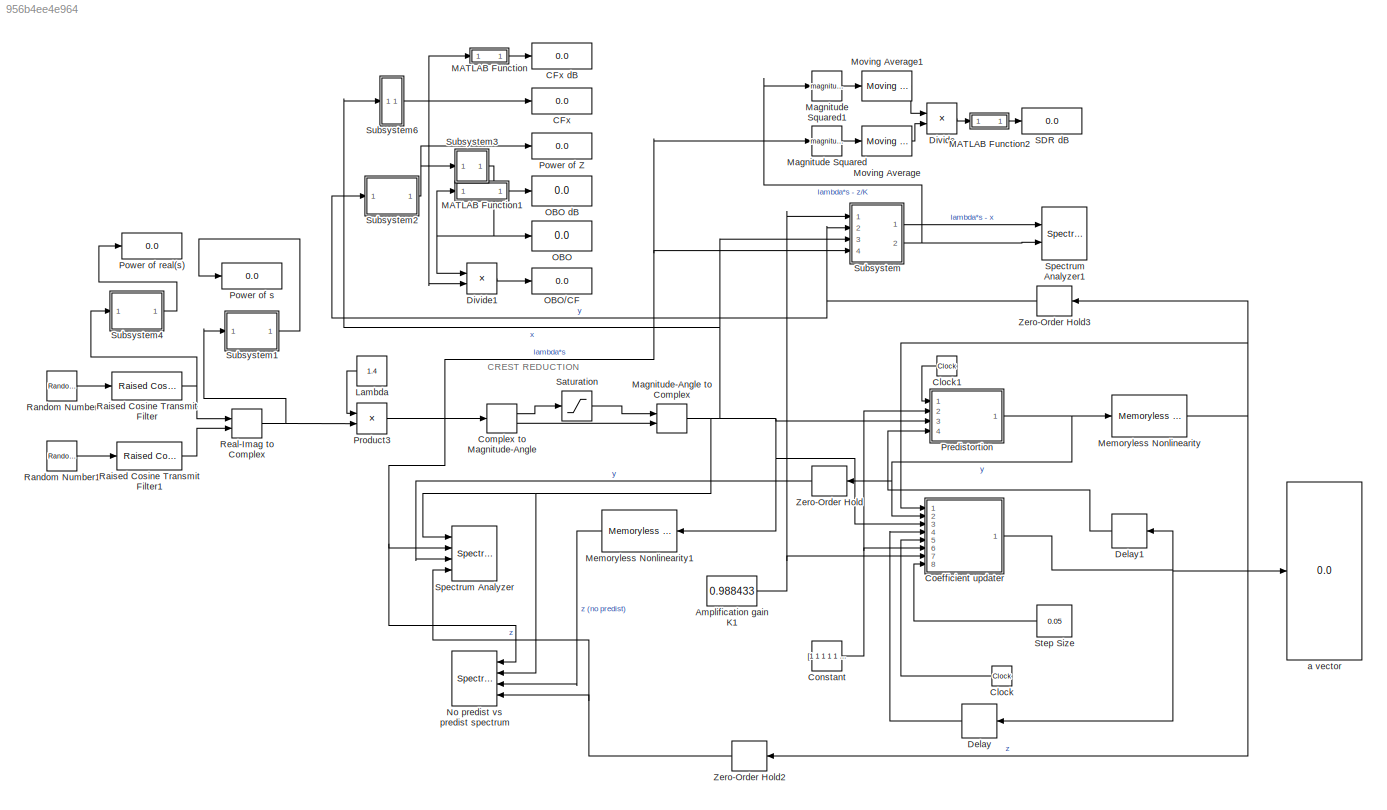
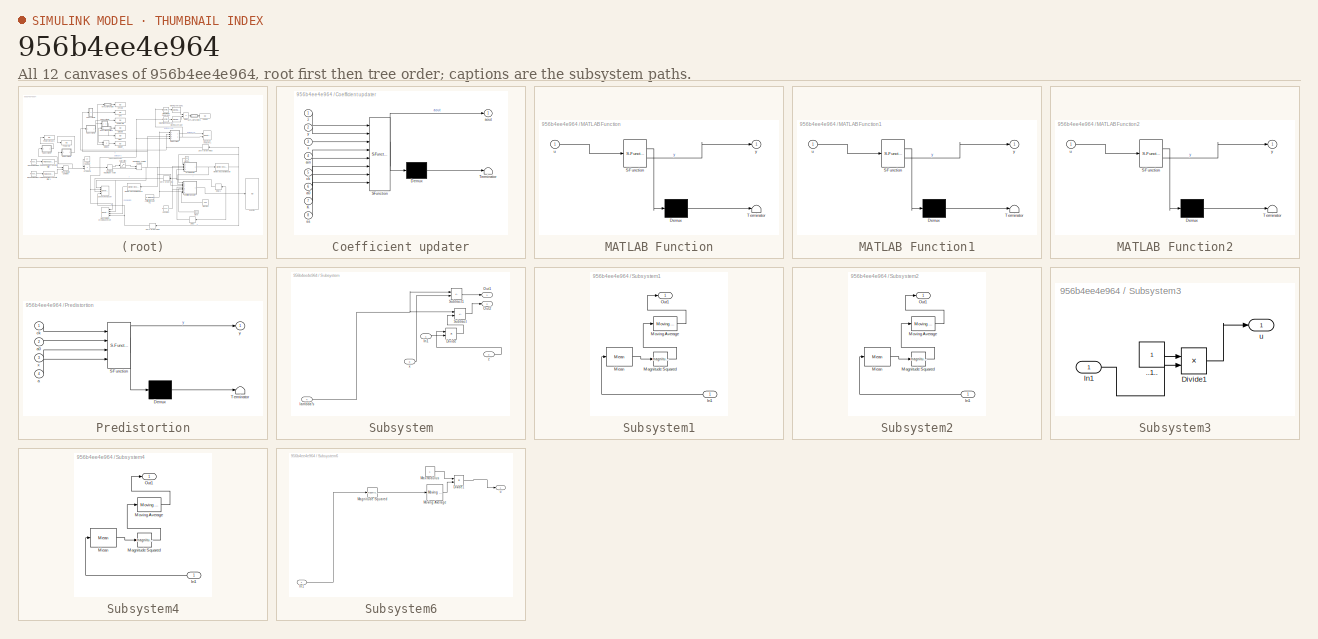
[diagram: thumbnail index - all 12 canvases of the model, root first then tree order]
MODEL slx_956b4ee4e964
KIND model
CONFIG AbsTol = auto
CONFIG EnableMultiTasking = off
CONFIG FixedStep = auto
CONFIG MaxStep = auto
CONFIG MinStep = auto
CONFIG RelTol = 1e-3
CONFIG SampleTimeConstraint = Unconstrained
CONFIG SolverName = VariableStepAuto
CONFIG StartTime = 0.0
CONFIG StopTime = 0.01
BLOCK [Display]  CFx
  Decimation = 1
  Ports = [1]
BLOCK [Display]  CFx dB
  Decimation = 1
  Ports = [1]
BLOCK [Display]  OBO
  Decimation = 1
  Ports = [1]
BLOCK [Display]  OBO dB
  Decimation = 1
  Ports = [1]
BLOCK [Display]  OBO//CF
  Decimation = 1
  Ports = [1]
BLOCK [Display]  Power of Z
  Decimation = 1
  Ports = [1]
BLOCK [Display]  Power of real(s)
  Decimation = 1
  Ports = [1]
BLOCK [Display]  Power of s
  Decimation = 1
  Ports = [1]
BLOCK [Constant] Amplification gain K1
  Value = 0.988433
BLOCK [Clock] Clock
BLOCK [Clock] Clock1
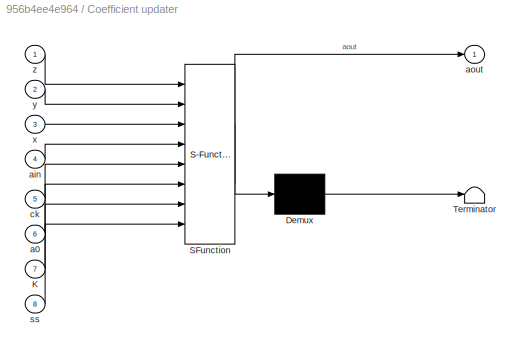
BLOCK [SubSystem] Coefficient updater
  ErrorFcn = Stateflow.Translate.translate
  PermitHierarchicalResolution = ExplicitOnly
  Ports = [8, 1]
  RequestExecContextInheritance = off
  SFBlockType = MATLAB Function
  TreatAsAtomicUnit = on
BLOCK [Demux] Coefficient updater/ Demux 
  Outputs = 1
  Ports = [1, 1]
BLOCK [S-Function] Coefficient updater/ SFunction 
  EnableBusSupport = on
  FunctionName = sf_sfun
  PortCounts = [8 2]
  Ports = [8, 2]
  SFcnIsStateOwnerBlock = off
  SFunctionDeploymentMode = off
  Tag = Stateflow S-Function 3
BLOCK [Terminator] Coefficient updater/ Terminator 
BLOCK [Inport] Coefficient updater/K
  Port = 7
BLOCK [Inport] Coefficient updater/a0
  Port = 6
BLOCK [Inport] Coefficient updater/ain
  Port = 4
BLOCK [Outport] Coefficient updater/aout
BLOCK [Inport] Coefficient updater/ck
  Port = 5
BLOCK [Inport] Coefficient updater/ss
  Port = 8
BLOCK [Inport] Coefficient updater/x
  Port = 3
BLOCK [Inport] Coefficient updater/y
  Port = 2
BLOCK [Inport] Coefficient updater/z
BLOCK [ComplexToMagnitudeAngle] Complex to Magnitude-Angle
  Ports = [1, 2]
BLOCK [Constant] Constant
  Value = [1 1 1 1 1 1 1 1 1 1]
BLOCK [Delay] Delay
  DelayLength = 1
  InitialCondition = 0
  InputPortMap = u0
  Ports = [1, 1]
BLOCK [Delay] Delay1
  DelayLength = 1
  InitialCondition = 0
  InputPortMap = u0
  Ports = [1, 1]
BLOCK [Product] Divide
  Inputs = /*
  Ports = [2, 1]
BLOCK [Product] Divide1
  Inputs = */
  NameLocation = top
  Ports = [2, 1]
BLOCK [Constant] Lambda
  Value = 1.4
BLOCK [SubSystem] MATLAB Function
  ErrorFcn = Stateflow.Translate.translate
  PermitHierarchicalResolution = ExplicitOnly
  Ports = [1, 1]
  RequestExecContextInheritance = off
  SFBlockType = MATLAB Function
  TreatAsAtomicUnit = on
BLOCK [Demux] MATLAB Function/ Demux 
  Outputs = 1
  Ports = [1, 1]
BLOCK [S-Function] MATLAB Function/ SFunction 
  EnableBusSupport = on
  FunctionName = sf_sfun
  PortCounts = [1 2]
  Ports = [1, 2]
  SFcnIsStateOwnerBlock = off
  SFunctionDeploymentMode = off
  Tag = Stateflow S-Function 5
BLOCK [Terminator] MATLAB Function/ Terminator 
BLOCK [Inport] MATLAB Function/u
BLOCK [Outport] MATLAB Function/y
BLOCK [SubSystem] MATLAB Function1
  ErrorFcn = Stateflow.Translate.translate
  PermitHierarchicalResolution = ExplicitOnly
  Ports = [1, 1]
  RequestExecContextInheritance = off
  SFBlockType = MATLAB Function
  TreatAsAtomicUnit = on
BLOCK [Demux] MATLAB Function1/ Demux 
  Outputs = 1
  Ports = [1, 1]
BLOCK [S-Function] MATLAB Function1/ SFunction 
  EnableBusSupport = on
  FunctionName = sf_sfun
  PortCounts = [1 2]
  Ports = [1, 2]
  SFcnIsStateOwnerBlock = off
  SFunctionDeploymentMode = off
  Tag = Stateflow S-Function 6
BLOCK [Terminator] MATLAB Function1/ Terminator 
BLOCK [Inport] MATLAB Function1/u
BLOCK [Outport] MATLAB Function1/y
BLOCK [SubSystem] MATLAB Function2
  ErrorFcn = Stateflow.Translate.translate
  PermitHierarchicalResolution = ExplicitOnly
  Ports = [1, 1]
  RequestExecContextInheritance = off
  SFBlockType = MATLAB Function
  TreatAsAtomicUnit = on
BLOCK [Demux] MATLAB Function2/ Demux 
  Outputs = 1
  Ports = [1, 1]
BLOCK [S-Function] MATLAB Function2/ SFunction 
  EnableBusSupport = on
  FunctionName = sf_sfun
  PortCounts = [1 2]
  Ports = [1, 2]
  SFcnIsStateOwnerBlock = off
  SFunctionDeploymentMode = off
  Tag = Stateflow S-Function 2
BLOCK [Terminator] MATLAB Function2/ Terminator 
BLOCK [Inport] MATLAB Function2/u
BLOCK [Outport] MATLAB Function2/y
BLOCK [Math] Magnitude Squared
  Operator = magnitude^2
  Ports = [1, 1]
BLOCK [Math] Magnitude Squared1
  Operator = magnitude^2
  Ports = [1, 1]
BLOCK [MagnitudeAngleToComplex] Magnitude-Angle to Complex
  Ports = [2, 1]
BLOCK [Reference] Memoryless Nonlinearity  REF=commrflib2/Memoryless
Nonlinearity
  Ports = [1, 1]
  SourceBlock = commrflib2/Memoryless\nNonlinearity
  SourceProductBaseCode = CM
  SourceType = Memoryless Nonlinearity
BLOCK [Reference] Memoryless Nonlinearity1  REF=commrflib2/Memoryless
Nonlinearity
  Ports = [1, 1]
  SourceBlock = commrflib2/Memoryless\nNonlinearity
  SourceProductBaseCode = CM
  SourceType = Memoryless Nonlinearity
BLOCK [Reference] Moving Average  REF=dspstat3/Moving
Average
  Ports = [1, 1]
  SourceBlock = dspstat3/Moving\nAverage
  SourceProductBaseCode = DS
  SourceType = dsp.simulink.MovingAverage
BLOCK [Reference] Moving Average1  REF=dspstat3/Moving
Average
  Ports = [1, 1]
  SourceBlock = dspstat3/Moving\nAverage
  SourceProductBaseCode = DS
  SourceType = dsp.simulink.MovingAverage
BLOCK [SpectrumAnalyzer] No predist vs predist spectrum
  Commented = on
  NumInputPorts = 4
  Ports = [4]
  ScopeSpecificationString = spbscopes.SpectrumAnalyzerBlockCfg('CurrentConfiguration', extmgr.ConfigurationSet(extmgr.Configuration('Core','General UI',true),extmgr.Configuration('Core','Source UI',true),extmgr.Configuration('Sources','WiredSimulink',true),extmgr.Configuration('Visuals','Spectrum',true,'AxesProperties',struct('Color',{[0 0 0],[0 0 0]},'XColor',{[0.686274509803922 0.686274509803922 0.686274509803922],[0.68627...<+2151ch>
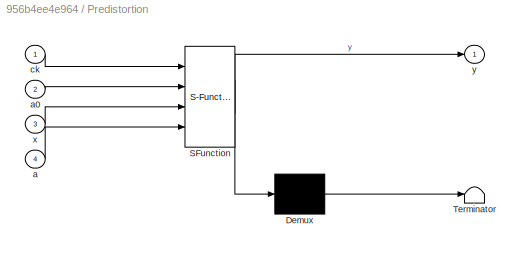
BLOCK [SubSystem] Predistortion
  ErrorFcn = Stateflow.Translate.translate
  PermitHierarchicalResolution = ExplicitOnly
  Ports = [4, 1]
  RequestExecContextInheritance = off
  SFBlockType = MATLAB Function
  TreatAsAtomicUnit = on
BLOCK [Demux] Predistortion/ Demux 
  Outputs = 1
  Ports = [1, 1]
BLOCK [S-Function] Predistortion/ SFunction 
  EnableBusSupport = on
  FunctionName = sf_sfun
  PortCounts = [4 2]
  Ports = [4, 2]
  SFcnIsStateOwnerBlock = off
  SFunctionDeploymentMode = off
  Tag = Stateflow S-Function 1
BLOCK [Terminator] Predistortion/ Terminator 
BLOCK [Inport] Predistortion/a
  Port = 4
BLOCK [Inport] Predistortion/a0
  Port = 2
BLOCK [Inport] Predistortion/ck
BLOCK [Inport] Predistortion/x
  Port = 3
BLOCK [Outport] Predistortion/y
BLOCK [Product] Product3
  Ports = [2, 1]
BLOCK [Reference] Raised Cosine Transmit Filter  REF=commfilt2/Raised Cosine
Transmit Filter
  Ports = [1, 1]
  SourceBlock = commfilt2/Raised Cosine\nTransmit Filter
  SourceProductBaseCode = CM
  SourceType = Raised Cosine Transmit Filter
BLOCK [Reference] Raised Cosine Transmit Filter1  REF=commfilt2/Raised Cosine
Transmit Filter
  Ports = [1, 1]
  SourceBlock = commfilt2/Raised Cosine\nTransmit Filter
  SourceProductBaseCode = CM
  SourceType = Raised Cosine Transmit Filter
BLOCK [RandomNumber] Random Number
  SampleTime = 0.0000002
  Seed = 3
BLOCK [RandomNumber] Random Number1
  SampleTime = 0.0000002
  Seed = 4
BLOCK [RealImagToComplex] Real-Imag to Complex
  Ports = [2, 1]
BLOCK [Display] SDR dB
  Decimation = 1
  Ports = [1]
BLOCK [Saturate] Saturation
  LinearizeAsGain = off
  LowerLimit = 0
  UpperLimit = 1
BLOCK [SpectrumAnalyzer] Spectrum Analyzer
  Commented = on
  NumInputPorts = 4
  Ports = [4]
  ScopeSpecificationString = spbscopes.SpectrumAnalyzerBlockCfg('CurrentConfiguration', extmgr.ConfigurationSet(extmgr.Configuration('Core','General UI',true),extmgr.Configuration('Core','Source UI',true),extmgr.Configuration('Sources','WiredSimulink',true),extmgr.Configuration('Visuals','Spectrum',true,'AxesProperties',struct('Color',{[0 0 0],[0 0 0]},'XColor',{[0.686274509803922 0.686274509803922 0.686274509803922],[0.68627...<+2107ch>
BLOCK [SpectrumAnalyzer] Spectrum Analyzer1
  Commented = on
  NumInputPorts = 2
  Ports = [2]
  ScopeSpecificationString = spbscopes.SpectrumAnalyzerBlockCfg('CurrentConfiguration', extmgr.ConfigurationSet(extmgr.Configuration('Core','General UI',true),extmgr.Configuration('Core','Source UI',true),extmgr.Configuration('Sources','WiredSimulink',true),extmgr.Configuration('Visuals','Spectrum',true,'AxesProperties',struct('Color',{[0 0 0],[0 0 0]},'XColor',{[0.686274509803922 0.686274509803922 0.686274509803922],[0.68627...<+1960ch>
BLOCK [Constant] Step Size
  NameLocation = top
  Value = 0.05
BLOCK [SubSystem] Subsystem
  Ports = [4, 2]
  RequestExecContextInheritance = off
BLOCK [Product] Subsystem/Divide
  Inputs = */
  Ports = [2, 1]
BLOCK [Inport] Subsystem/In1
BLOCK [Outport] Subsystem/Out1
BLOCK [Outport] Subsystem/Out2
  Port = 2
BLOCK [Sum] Subsystem/Subtract
  IconShape = rectangular
  Inputs = +-
  Ports = [2, 1]
BLOCK [Sum] Subsystem/Subtract1
  IconShape = rectangular
  Inputs = +-
  Ports = [2, 1]
BLOCK [Inport] Subsystem/lambda*s
  Port = 4
BLOCK [Inport] Subsystem/x
  Port = 3
BLOCK [Inport] Subsystem/z
  Port = 2
BLOCK [SubSystem] Subsystem1
  Ports = [1, 1]
  RequestExecContextInheritance = off
BLOCK [Inport] Subsystem1/In1
BLOCK [Math] Subsystem1/Magnitude Squared
  Operator = magnitude^2
  Ports = [1, 1]
BLOCK [Reference] Subsystem1/Mean  REF=dspstat3/Mean
  Ports = [1, 1]
  SourceBlock = dspstat3/Mean
  SourceProductBaseCode = DS
  SourceType = Mean
  UserDataPersistent = on
BLOCK [Reference] Subsystem1/Moving Average  REF=dspstat3/Moving
Average
  Ports = [1, 1]
  SourceBlock = dspstat3/Moving\nAverage
  SourceProductBaseCode = DS
  SourceType = dsp.simulink.MovingAverage
BLOCK [Outport] Subsystem1/Out1
BLOCK [SubSystem] Subsystem2
  Ports = [1, 1]
  RequestExecContextInheritance = off
BLOCK [Inport] Subsystem2/In1
BLOCK [Math] Subsystem2/Magnitude Squared
  Operator = magnitude^2
  Ports = [1, 1]
BLOCK [Reference] Subsystem2/Mean  REF=dspstat3/Mean
  Ports = [1, 1]
  SourceBlock = dspstat3/Mean
  SourceProductBaseCode = DS
  SourceType = Mean
  UserDataPersistent = on
BLOCK [Reference] Subsystem2/Moving Average  REF=dspstat3/Moving
Average
  Ports = [1, 1]
  SourceBlock = dspstat3/Moving\nAverage
  SourceProductBaseCode = DS
  SourceType = dsp.simulink.MovingAverage
BLOCK [Outport] Subsystem2/Out1
BLOCK [SubSystem] Subsystem3
  Ports = [1, 1]
  RequestExecContextInheritance = off
BLOCK [Constant] Subsystem3/..1..
BLOCK [Product] Subsystem3/Divide1
  Inputs = */
  Ports = [2, 1]
BLOCK [Inport] Subsystem3/In1
BLOCK [Outport] Subsystem3/u
BLOCK [SubSystem] Subsystem4
  Ports = [1, 1]
  RequestExecContextInheritance = off
BLOCK [Inport] Subsystem4/In1
BLOCK [Math] Subsystem4/Magnitude Squared
  Operator = magnitude^2
  Ports = [1, 1]
BLOCK [Reference] Subsystem4/Mean  REF=dspstat3/Mean
  Ports = [1, 1]
  SourceBlock = dspstat3/Mean
  SourceProductBaseCode = DS
  SourceType = Mean
  UserDataPersistent = on
BLOCK [Reference] Subsystem4/Moving Average  REF=dspstat3/Moving
Average
  Ports = [1, 1]
  SourceBlock = dspstat3/Moving\nAverage
  SourceProductBaseCode = DS
  SourceType = dsp.simulink.MovingAverage
BLOCK [Outport] Subsystem4/Out1
BLOCK [SubSystem] Subsystem6
  Ports = [1, 1]
  RequestExecContextInheritance = off
BLOCK [Product] Subsystem6/Divide1
  Inputs = */
  Ports = [2, 1]
BLOCK [Inport] Subsystem6/In1
BLOCK [Math] Subsystem6/Magnitude Squared
  Operator = magnitude^2
  Ports = [1, 1]
BLOCK [Constant] Subsystem6/Max modulus
BLOCK [Reference] Subsystem6/Moving Average  REF=dspstat3/Moving
Average
  Ports = [1, 1]
  SourceBlock = dspstat3/Moving\nAverage
  SourceProductBaseCode = DS
  SourceType = dsp.simulink.MovingAverage
BLOCK [Outport] Subsystem6/u
BLOCK [ZeroOrderHold] Zero-Order Hold
  SampleTime = -1
BLOCK [ZeroOrderHold] Zero-Order Hold2
  SampleTime = -1
BLOCK [ZeroOrderHold] Zero-Order Hold3
  SampleTime = -1
BLOCK [Display] a vector
  Decimation = 1
  Ports = [1]
ANNOTATION (root): CREST REDUCTION
NET Amplification gain K1:1 -> Coefficient updater:7, Subsystem:1
LINE Clock1:1 -> Predistortion:1
LINE Clock:1 -> Coefficient updater:5
NET Coefficient updater:1 -> Delay1:1, Delay:1, a vector:1
LINE Complex to Magnitude-Angle:1 -> Saturation:1
LINE Complex to Magnitude-Angle:2 -> Magnitude-Angle to Complex:2
NET Constant:1 -> Coefficient updater:6, Predistortion:2
LINE Delay1:1 -> Predistortion:4
LINE Delay:1 -> Coefficient updater:4
LINE Divide1:1 ->  OBO//CF:1
LINE Divide:1 -> MATLAB Function2:1
LINE Lambda:1 -> Product3:1
LINE MATLAB Function1:1 ->  OBO dB:1
LINE MATLAB Function2:1 -> SDR dB:1
LINE MATLAB Function:1 ->  CFx dB:1
LINE Magnitude Squared1:1 -> Moving Average1:1
LINE Magnitude Squared:1 -> Moving Average:1
NET Magnitude-Angle to Complex:1 -> Coefficient updater:3, Memoryless Nonlinearity1:1, No predist vs predist spectrum:2, Predistortion:3, Spectrum Analyzer:1, Subsystem6:1, Subsystem:3
LINE Memoryless Nonlinearity1:1 -> No predist vs predist spectrum:3
NET Memoryless Nonlinearity:1 -> Coefficient updater:1, Zero-Order Hold2:1, Zero-Order Hold3:1
LINE Moving Average1:1 -> Divide:1
LINE Moving Average:1 -> Divide:2
NET Predistortion:1 -> Coefficient updater:2, Memoryless Nonlinearity:1, Zero-Order Hold:1
NET Product3:1 -> Complex to Magnitude-Angle:1, Magnitude Squared:1, No predist vs predist spectrum:1, Spectrum Analyzer:2, Subsystem:4
LINE Raised Cosine Transmit Filter1:1 -> Real-Imag to Complex:2
NET Raised Cosine Transmit Filter:1 -> Real-Imag to Complex:1, Subsystem4:1
LINE Random Number1:1 -> Raised Cosine Transmit Filter1:1
LINE Random Number:1 -> Raised Cosine Transmit Filter:1
NET Real-Imag to Complex:1 -> Product3:2, Subsystem1:1
LINE Saturation:1 -> Magnitude-Angle to Complex:1
LINE Step Size:1 -> Coefficient updater:8
LINE Subsystem/Divide:1 -> Subsystem/Subtract:2
LINE Subsystem/In1:1 -> Subsystem/Divide:2
LINE Subsystem/Subtract1:1 -> Subsystem/Out1:1
LINE Subsystem/Subtract:1 -> Subsystem/Out2:1
NET Subsystem/lambda*s:1 -> Subsystem/Subtract1:1, Subsystem/Subtract:1
LINE Subsystem/x:1 -> Subsystem/Subtract1:2
LINE Subsystem/z:1 -> Subsystem/Divide:1
LINE Subsystem1/In1:1 -> Subsystem1/Mean:1
LINE Subsystem1/Magnitude Squared:1 -> Subsystem1/Moving Average:1
LINE Subsystem1/Mean:1 -> Subsystem1/Magnitude Squared:1
LINE Subsystem1/Moving Average:1 -> Subsystem1/Out1:1
LINE Subsystem1:1 ->  Power of s:1
LINE Subsystem2/In1:1 -> Subsystem2/Mean:1
LINE Subsystem2/Magnitude Squared:1 -> Subsystem2/Moving Average:1
LINE Subsystem2/Mean:1 -> Subsystem2/Magnitude Squared:1
LINE Subsystem2/Moving Average:1 -> Subsystem2/Out1:1
NET Subsystem2:1 ->  Power of Z:1, Subsystem3:1
LINE Subsystem3/..1..:1 -> Subsystem3/Divide1:1
LINE Subsystem3/Divide1:1 -> Subsystem3/u:1
LINE Subsystem3/In1:1 -> Subsystem3/Divide1:2
NET Subsystem3:1 ->  OBO:1, Divide1:1, MATLAB Function1:1
LINE Subsystem4/In1:1 -> Subsystem4/Mean:1
LINE Subsystem4/Magnitude Squared:1 -> Subsystem4/Moving Average:1
LINE Subsystem4/Mean:1 -> Subsystem4/Magnitude Squared:1
LINE Subsystem4/Moving Average:1 -> Subsystem4/Out1:1
LINE Subsystem4:1 ->  Power of real(s):1
LINE Subsystem6/Divide1:1 -> Subsystem6/u:1
LINE Subsystem6/In1:1 -> Subsystem6/Magnitude Squared:1
LINE Subsystem6/Magnitude Squared:1 -> Subsystem6/Moving Average:1
LINE Subsystem6/Max modulus:1 -> Subsystem6/Divide1:1
LINE Subsystem6/Moving Average:1 -> Subsystem6/Divide1:2
NET Subsystem6:1 ->  CFx:1, Divide1:2, MATLAB Function:1
LINE Subsystem:1 -> Spectrum Analyzer1:1
NET Subsystem:2 -> Magnitude Squared1:1, Spectrum Analyzer1:2
NET Zero-Order Hold2:1 -> No predist vs predist spectrum:4, Spectrum Analyzer:4
NET Zero-Order Hold3:1 -> Subsystem2:1, Subsystem:2
LINE Zero-Order Hold:1 -> Spectrum Analyzer:3
note: NET lines group one-source signal fan-out (src -> all destinations, sorted); 1:1 wires keep LINE
CHART Predistortion states=1 transitions=1
  STATE_LABEL 'eML_blk_kernel()'
  STATE_LABEL 'SCRIPT:\nfunction y = predistort(ck, a0, x, a)\nif ck == 0\n   aa = a0;\nelse aa = a;\nend\nN = length(aa);\noutpt = x-x;\nfor j = 1:length(x)\n    for k = 1:(N-1)\n        if (abs(x(j))>=1)\n            outpt(j) = x(j)*a(end);\n        end\n        if (k-1)/(N-1) <= abs(x(j)) && k/(N-1) > abs(x(j))\n            outpt(j) = x(j)*(aa(k+1)+(a(k+1)-a(k))*(abs(x(j))*(N-1)-k));\n            %outpt(j) = (aa(k) + (aa(k+...<+68ch>'
CHART MATLAB Function2 states=1 transitions=1
  STATE_LABEL 'eML_blk_kernel()'
  STATE_LABEL 'SCRIPT:\nfunction y = lintodb(u)\ny = mean(10.*log10(u));\n'
CHART Coefficient updater states=1 transitions=1
  STATE_LABEL 'eML_blk_kernel()'
  STATE_LABEL 'SCRIPT:\nfunction aout = adapt(z, y, x, ain, ck, a0, K, ss)\nif ck < 5e-6\n    aout = a0;\nelse\naux = ain;  %auxiliary vector\naaaa = 0;\nN = length(ain);\nfor j = 1:length(x) % x, y and z all have the same length (8)\n    for k = 1:N\n        if abs(x(j)) < ((2*k-1)/(2*N-2))\n            aux(k) = real(ain(k) - ss*k*(z(j)-K*x(j))*conj(z(j))*conj(x(j))/conj(y(j)));\n        end\n    end\nend\naout = aux;\nend'
CHART MATLAB Function states=1 transitions=1
  STATE_LABEL 'eML_blk_kernel()'
  STATE_LABEL 'SCRIPT:\nfunction y = lintodb(u)\ny = mean(10.*log10(u));\n'
CHART MATLAB Function1 states=1 transitions=1
  STATE_LABEL 'eML_blk_kernel()'
  STATE_LABEL 'SCRIPT:\nfunction y = lintodb(u)\ny = 10*log10(u);\n'
CHART  states=0 transitions=0
CHART  states=0 transitions=0
CHART  states=0 transitions=0
CHART  states=0 transitions=0
CHART  states=0 transitions=0
